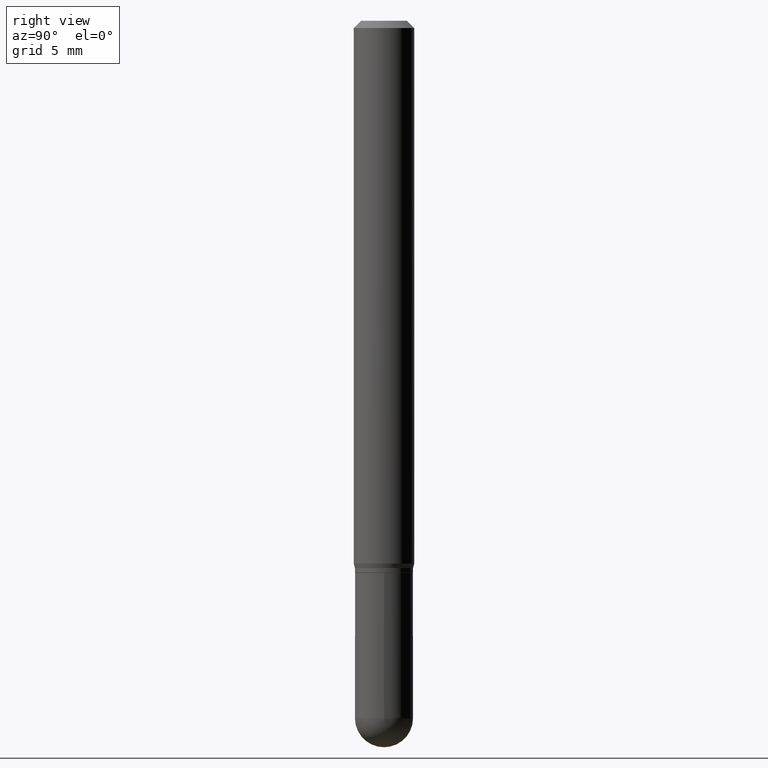
[diagram: clean part render]
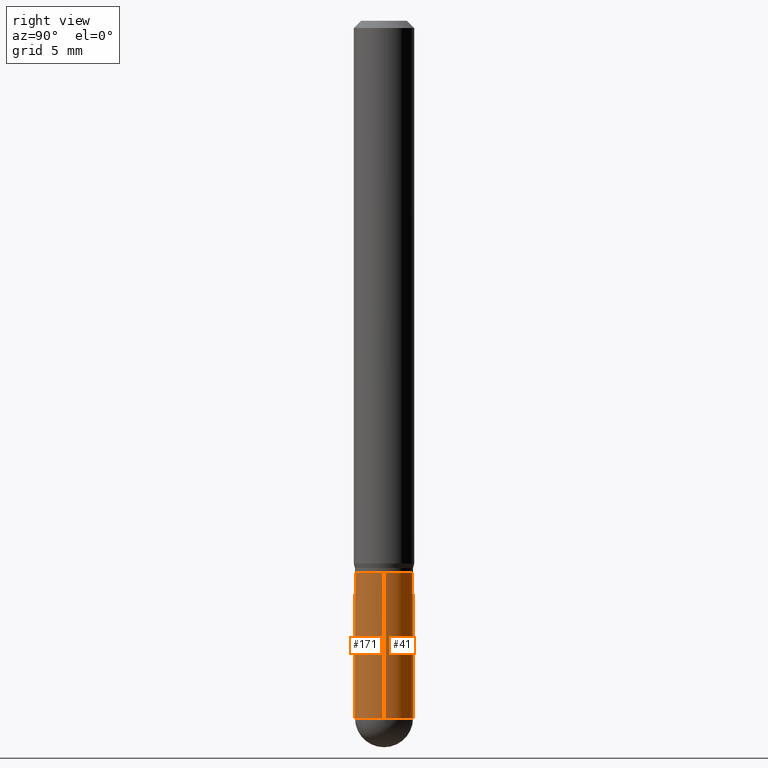
[diagram: same view with one multi-face feature highlighted, each face labeled with its STEP entity id]
A machine part, right view. The highlighted faces form ONE feature: a constant-radius fillet chain: 2 tangent blend faces with common blend radius 1.524 mm. The faces share edges in the B-rep.
Their STEP definitions:
[1] entity #171 (Cylinder):
#13 = ORIENTED_EDGE ( 'NONE', *, *, #228, .F. ) ;
#15 = CIRCLE ( 'NONE', #395, 0.06000000000000001166 ) ;
#76 = EDGE_LOOP ( 'NONE', ( #464, #162, #325, #385, #13 ) ) ;
#77 = CYLINDRICAL_SURFACE ( 'NONE', #291, 0.06000000000000001166 ) ;
#93 = VECTOR ( 'NONE', #255, 39.37007874015748143 ) ;
#100 = CARTESIAN_POINT ( 'NONE',  ( 0.05999999999999999778, -4.399266486942362543E-15, -1.140000000000000124 ) ) ;
#137 = EDGE_CURVE ( 'NONE', #314, #371, #300, .T. ) ;
#150 = DIRECTION ( 'NONE',  ( -2.445468806185136597E-29, 3.491481338843145583E-15, 1.000000000000000000 ) ) ;
#151 = AXIS2_PLACEMENT_3D ( 'NONE', #345, #150, #308 ) ;
#157 = EDGE_CURVE ( 'NONE', #480, #193, #354, .T. ) ;
#162 = ORIENTED_EDGE ( 'NONE', *, *, #393, .T. ) ;
#171 = ADVANCED_FACE ( 'NONE', ( #227 ), #77, .T. ) ;
#177 = CARTESIAN_POINT ( 'NONE',  ( -4.189777606611406419E-16, -0.06000000000000501460, -1.439999999999999947 ) ) ;
#193 = VERTEX_POINT ( 'NONE', #469 ) ;
#209 = CARTESIAN_POINT ( 'NONE',  ( 3.521475080906597305E-29, -5.027733127934130649E-15, -1.440000000000000169 ) ) ;
#227 = FACE_OUTER_BOUND ( 'NONE', #76, .T. ) ;
#228 = EDGE_CURVE ( 'NONE', #193, #371, #372, .T. ) ;
#239 = DIRECTION ( 'NONE',  ( -2.445468806185136597E-29, 3.491481338843145583E-15, 1.000000000000000000 ) ) ;
#255 = DIRECTION ( 'NONE',  ( -2.445468806185136877E-29, 3.491481338843145188E-15, 1.000000000000000000 ) ) ;
#259 = DIRECTION ( 'NONE',  ( -2.445468806185136597E-29, 3.491481338843145583E-15, 1.000000000000000000 ) ) ;
#262 = EDGE_CURVE ( 'NONE', #344, #314, #279, .T. ) ;
#267 = VECTOR ( 'NONE', #400, 39.37007874015748143 ) ;
#272 = DIRECTION ( 'NONE',  ( -2.445468806185136597E-29, 3.491481338843145583E-15, 1.000000000000000000 ) ) ;
#279 = CIRCLE ( 'NONE', #467, 0.06000000000000001166 ) ;
#280 = DIRECTION ( 'NONE',  ( 1.000000000000000000, -6.982962677686266711E-15, 4.876176775795935793E-29 ) ) ;
#291 = AXIS2_PLACEMENT_3D ( 'NONE', #506, #239, #280 ) ;
#300 = LINE ( 'NONE', #422, #93 ) ;
#308 = DIRECTION ( 'NONE',  ( 1.000000000000000000, -6.982962677686268288E-15, 0.000000000000000000 ) ) ;
#311 = CARTESIAN_POINT ( 'NONE',  ( 3.521475080906597305E-29, -5.027733127934130649E-15, -1.440000000000000169 ) ) ;
#314 = VERTEX_POINT ( 'NONE', #457 ) ;
#325 = ORIENTED_EDGE ( 'NONE', *, *, #262, .T. ) ;
#328 = DIRECTION ( 'NONE',  ( 1.000000000000000000, -6.982962677686266711E-15, 0.000000000000000000 ) ) ;
#344 = VERTEX_POINT ( 'NONE', #177 ) ;
#345 = CARTESIAN_POINT ( 'NONE',  ( 2.787834439051055989E-29, -3.980288726281186698E-15, -1.140000000000000124 ) ) ;
#354 = LINE ( 'NONE', #472, #267 ) ;
#371 = VERTEX_POINT ( 'NONE', #100 ) ;
#372 = CIRCLE ( 'NONE', #151, 0.05999999999999999778 ) ;
#385 = ORIENTED_EDGE ( 'NONE', *, *, #137, .T. ) ;
#393 = EDGE_CURVE ( 'NONE', #480, #344, #15, .T. ) ;
#395 = AXIS2_PLACEMENT_3D ( 'NONE', #209, #259, #328 ) ;
#400 = DIRECTION ( 'NONE',  ( -2.445468806185136877E-29, 3.491481338843145188E-15, 1.000000000000000000 ) ) ;
#422 = CARTESIAN_POINT ( 'NONE',  ( 0.06000000000000001166, -4.189777606611760914E-16, 2.925706065477562106E-30 ) ) ;
#430 = DIRECTION ( 'NONE',  ( 1.000000000000000000, -6.982962677686266711E-15, 0.000000000000000000 ) ) ;
#457 = CARTESIAN_POINT ( 'NONE',  ( 0.06000000000000001166, -4.922988687768835701E-15, -1.440000000000000169 ) ) ;
#464 = ORIENTED_EDGE ( 'NONE', *, *, #157, .F. ) ;
#467 = AXIS2_PLACEMENT_3D ( 'NONE', #311, #272, #430 ) ;
#469 = CARTESIAN_POINT ( 'NONE',  ( -0.05999999999999999778, -4.077685285651597789E-15, -1.140000000000000124 ) ) ;
#470 = CARTESIAN_POINT ( 'NONE',  ( -0.06000000000000001166, -4.077685285651599366E-15, -1.440000000000000169 ) ) ;
#472 = CARTESIAN_POINT ( 'NONE',  ( -0.06000000000000001166, 4.263256414560601944E-16, -2.951361054152943763E-30 ) ) ;
#480 = VERTEX_POINT ( 'NONE', #470 ) ;
#506 = CARTESIAN_POINT ( 'NONE',  ( 0.000000000000000000, 0.000000000000000000, 0.000000000000000000 ) ) ;
[2] entity #41 (Cylinder):
#8 = AXIS2_PLACEMENT_3D ( 'NONE', #412, #57, #253 ) ;
#18 = DIRECTION ( 'NONE',  ( 1.000000000000000000, -6.982962677686268288E-15, 0.000000000000000000 ) ) ;
#37 = ORIENTED_EDGE ( 'NONE', *, *, #125, .T. ) ;
#38 = AXIS2_PLACEMENT_3D ( 'NONE', #500, #305, #59 ) ;
#41 = ADVANCED_FACE ( 'NONE', ( #413 ), #331, .T. ) ;
#53 = CARTESIAN_POINT ( 'NONE',  ( 4.263256414560951014E-16, 0.05999999999999495320, -1.440000000000000391 ) ) ;
#57 = DIRECTION ( 'NONE',  ( -2.445468806185136597E-29, 3.491481338843145583E-15, 1.000000000000000000 ) ) ;
#59 = DIRECTION ( 'NONE',  ( 1.000000000000000000, -6.982962677686266711E-15, 4.876176775795935793E-29 ) ) ;
#69 = EDGE_CURVE ( 'NONE', #371, #193, #287, .T. ) ;
#70 = ORIENTED_EDGE ( 'NONE', *, *, #69, .F. ) ;
#80 = CIRCLE ( 'NONE', #8, 0.06000000000000001166 ) ;
#93 = VECTOR ( 'NONE', #255, 39.37007874015748143 ) ;
#100 = CARTESIAN_POINT ( 'NONE',  ( 0.05999999999999999778, -4.399266486942362543E-15, -1.140000000000000124 ) ) ;
#123 = EDGE_LOOP ( 'NONE', ( #399, #439, #70, #319, #37 ) ) ;
#125 = EDGE_CURVE ( 'NONE', #314, #388, #365, .T. ) ;
#137 = EDGE_CURVE ( 'NONE', #314, #371, #300, .T. ) ;
#157 = EDGE_CURVE ( 'NONE', #480, #193, #354, .T. ) ;
#180 = DIRECTION ( 'NONE',  ( -2.445468806185136597E-29, 3.491481338843145583E-15, 1.000000000000000000 ) ) ;
#193 = VERTEX_POINT ( 'NONE', #469 ) ;
#217 = CARTESIAN_POINT ( 'NONE',  ( 3.521475080906597305E-29, -5.027733127934130649E-15, -1.440000000000000169 ) ) ;
#224 = AXIS2_PLACEMENT_3D ( 'NONE', #217, #180, #329 ) ;
#253 = DIRECTION ( 'NONE',  ( 1.000000000000000000, -6.982962677686266711E-15, 0.000000000000000000 ) ) ;
#255 = DIRECTION ( 'NONE',  ( -2.445468806185136877E-29, 3.491481338843145188E-15, 1.000000000000000000 ) ) ;
#266 = CARTESIAN_POINT ( 'NONE',  ( 2.787834439051055989E-29, -3.980288726281186698E-15, -1.140000000000000124 ) ) ;
#267 = VECTOR ( 'NONE', #400, 39.37007874015748143 ) ;
#287 = CIRCLE ( 'NONE', #423, 0.05999999999999999778 ) ;
#300 = LINE ( 'NONE', #422, #93 ) ;
#302 = DIRECTION ( 'NONE',  ( -2.445468806185136597E-29, 3.491481338843145583E-15, 1.000000000000000000 ) ) ;
#305 = DIRECTION ( 'NONE',  ( -2.445468806185136597E-29, 3.491481338843145583E-15, 1.000000000000000000 ) ) ;
#314 = VERTEX_POINT ( 'NONE', #457 ) ;
#319 = ORIENTED_EDGE ( 'NONE', *, *, #137, .F. ) ;
#329 = DIRECTION ( 'NONE',  ( 1.000000000000000000, -6.982962677686266711E-15, 0.000000000000000000 ) ) ;
#331 = CYLINDRICAL_SURFACE ( 'NONE', #38, 0.06000000000000001166 ) ;
#354 = LINE ( 'NONE', #472, #267 ) ;
#365 = CIRCLE ( 'NONE', #224, 0.06000000000000001166 ) ;
#371 = VERTEX_POINT ( 'NONE', #100 ) ;
#374 = EDGE_CURVE ( 'NONE', #388, #480, #80, .T. ) ;
#388 = VERTEX_POINT ( 'NONE', #53 ) ;
#399 = ORIENTED_EDGE ( 'NONE', *, *, #374, .T. ) ;
#400 = DIRECTION ( 'NONE',  ( -2.445468806185136877E-29, 3.491481338843145188E-15, 1.000000000000000000 ) ) ;
#412 = CARTESIAN_POINT ( 'NONE',  ( 3.521475080906597305E-29, -5.027733127934130649E-15, -1.440000000000000169 ) ) ;
#413 = FACE_OUTER_BOUND ( 'NONE', #123, .T. ) ;
#422 = CARTESIAN_POINT ( 'NONE',  ( 0.06000000000000001166, -4.189777606611760914E-16, 2.925706065477562106E-30 ) ) ;
#423 = AXIS2_PLACEMENT_3D ( 'NONE', #266, #302, #18 ) ;
#439 = ORIENTED_EDGE ( 'NONE', *, *, #157, .T. ) ;
#457 = CARTESIAN_POINT ( 'NONE',  ( 0.06000000000000001166, -4.922988687768835701E-15, -1.440000000000000169 ) ) ;
#469 = CARTESIAN_POINT ( 'NONE',  ( -0.05999999999999999778, -4.077685285651597789E-15, -1.140000000000000124 ) ) ;
#470 = CARTESIAN_POINT ( 'NONE',  ( -0.06000000000000001166, -4.077685285651599366E-15, -1.440000000000000169 ) ) ;
#472 = CARTESIAN_POINT ( 'NONE',  ( -0.06000000000000001166, 4.263256414560601944E-16, -2.951361054152943763E-30 ) ) ;
#480 = VERTEX_POINT ( 'NONE', #470 ) ;
#500 = CARTESIAN_POINT ( 'NONE',  ( 0.000000000000000000, 0.000000000000000000, 0.000000000000000000 ) ) ;